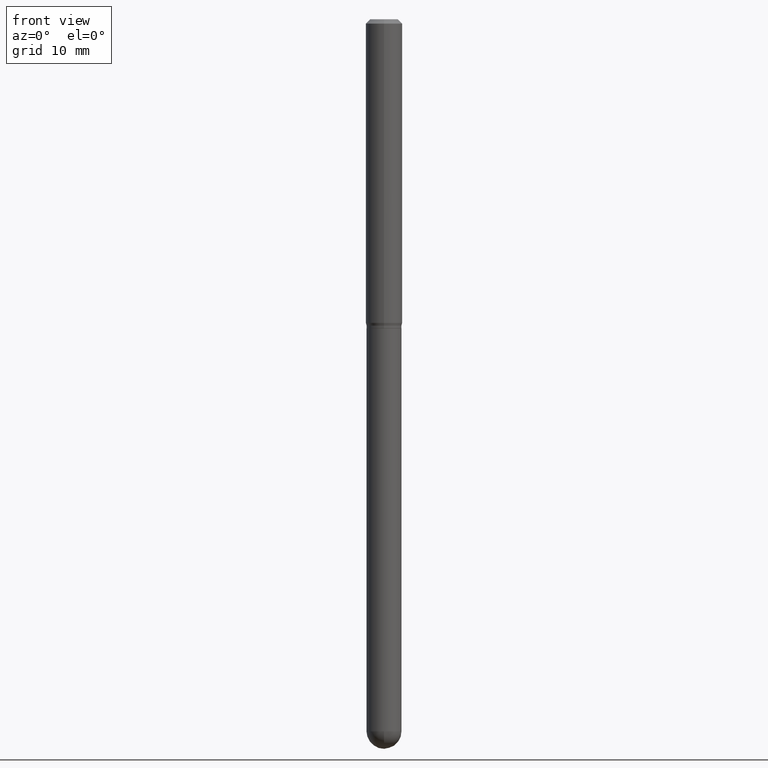
[diagram: clean part render]
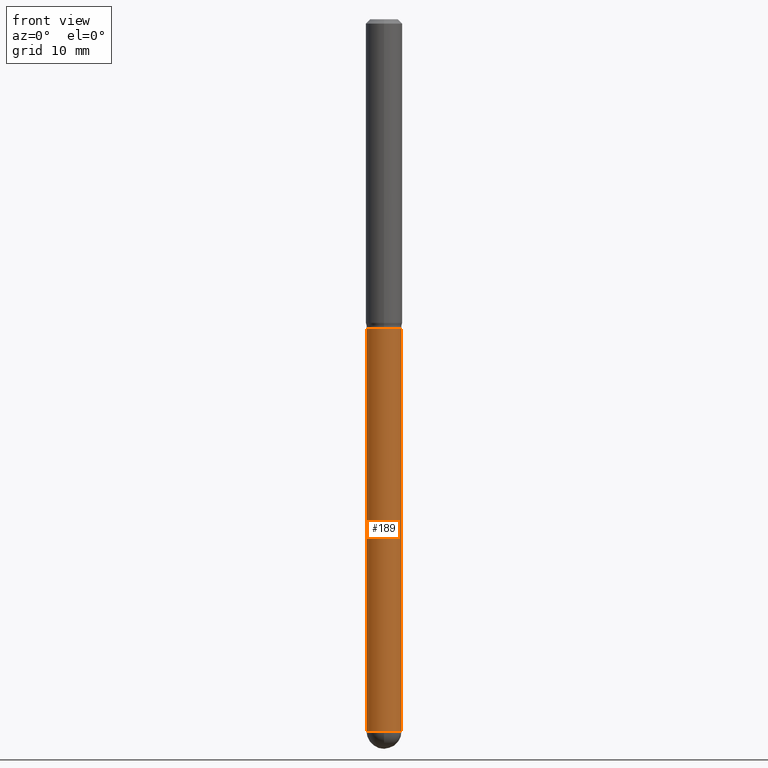
[diagram: same view with one face highlighted and labeled with its STEP entity id]
A machine part, front view. The second image highlights one B-rep face of the part: STEP entity #189.
In plain terms, the highlighted cylindrical surface (edge-blend (fillet) strip) has radius 1.524 mm, axis along (-0, 0, 1).
Its self-contained STEP definition (entity closure, byte-faithful):
#10 = DIRECTION ( 'NONE',  ( -2.445468806185136597E-29, 3.491481338843145583E-15, 1.000000000000000000 ) ) ;
#45 = DIRECTION ( 'NONE',  ( -2.445468806185136597E-29, 3.491481338843145583E-15, 1.000000000000000000 ) ) ;
#49 = VERTEX_POINT ( 'NONE', #469 ) ;
#52 = CIRCLE ( 'NONE', #179, 0.06000000000000001166 ) ;
#61 = DIRECTION ( 'NONE',  ( 1.000000000000000000, -6.982962677686266711E-15, 0.000000000000000000 ) ) ;
#66 = VERTEX_POINT ( 'NONE', #193 ) ;
#78 = DIRECTION ( 'NONE',  ( 1.000000000000000000, -6.982962677686268288E-15, 0.000000000000000000 ) ) ;
#84 = LINE ( 'NONE', #387, #352 ) ;
#87 = EDGE_CURVE ( 'NONE', #104, #49, #84, .T. ) ;
#104 = VERTEX_POINT ( 'NONE', #437 ) ;
#126 = FACE_OUTER_BOUND ( 'NONE', #414, .T. ) ;
#128 = DIRECTION ( 'NONE',  ( 1.000000000000000000, -6.982962677686266711E-15, 0.000000000000000000 ) ) ;
#130 = EDGE_CURVE ( 'NONE', #371, #66, #391, .T. ) ;
#142 = EDGE_CURVE ( 'NONE', #49, #66, #209, .T. ) ;
#171 = CARTESIAN_POINT ( 'NONE',  ( 0.06000000000000001166, -6.529070103636681305E-15, -2.440000000000000391 ) ) ;
#175 = CARTESIAN_POINT ( 'NONE',  ( 5.966943887091733341E-29, -8.519214466777275048E-15, -2.440000000000000391 ) ) ;
#179 = AXIS2_PLACEMENT_3D ( 'NONE', #490, #212, #128 ) ;
#182 = VERTEX_POINT ( 'NONE', #507 ) ;
#183 = DIRECTION ( 'NONE',  ( -2.445468806185136877E-29, 3.491481338843145188E-15, 1.000000000000000000 ) ) ;
#186 = VECTOR ( 'NONE', #183, 39.37007874015748143 ) ;
#189 = ADVANCED_FACE ( 'NONE', ( #126 ), #390, .T. ) ;
#193 = CARTESIAN_POINT ( 'NONE',  ( 0.05999999999999999778, -4.119947979834910928E-15, -1.060000000000000275 ) ) ;
#197 = CARTESIAN_POINT ( 'NONE',  ( 0.06000000000000001166, -4.189777606611760914E-16, 2.925706065477562106E-30 ) ) ;
#205 = DIRECTION ( 'NONE',  ( 1.000000000000000000, -6.982962677686266711E-15, 4.876176775795935793E-29 ) ) ;
#209 = CIRCLE ( 'NONE', #486, 0.05999999999999999778 ) ;
#212 = DIRECTION ( 'NONE',  ( -2.445468806185136597E-29, 3.491481338843145583E-15, 1.000000000000000000 ) ) ;
#214 = AXIS2_PLACEMENT_3D ( 'NONE', #398, #45, #205 ) ;
#225 = ORIENTED_EDGE ( 'NONE', *, *, #323, .T. ) ;
#227 = ORIENTED_EDGE ( 'NONE', *, *, #130, .T. ) ;
#273 = CIRCLE ( 'NONE', #319, 0.06000000000000001166 ) ;
#300 = ORIENTED_EDGE ( 'NONE', *, *, #465, .T. ) ;
#303 = ORIENTED_EDGE ( 'NONE', *, *, #142, .F. ) ;
#313 = DIRECTION ( 'NONE',  ( -2.445468806185136877E-29, 3.491481338843145188E-15, 1.000000000000000000 ) ) ;
#319 = AXIS2_PLACEMENT_3D ( 'NONE', #175, #10, #61 ) ;
#323 = EDGE_CURVE ( 'NONE', #104, #182, #52, .T. ) ;
#332 = ORIENTED_EDGE ( 'NONE', *, *, #87, .F. ) ;
#352 = VECTOR ( 'NONE', #313, 39.37007874015748143 ) ;
#371 = VERTEX_POINT ( 'NONE', #171 ) ;
#387 = CARTESIAN_POINT ( 'NONE',  ( -0.06000000000000001166, 4.263256414560601944E-16, -2.951361054152943763E-30 ) ) ;
#390 = CYLINDRICAL_SURFACE ( 'NONE', #214, 0.06000000000000001166 ) ;
#391 = LINE ( 'NONE', #197, #186 ) ;
#398 = CARTESIAN_POINT ( 'NONE',  ( 0.000000000000000000, 0.000000000000000000, 0.000000000000000000 ) ) ;
#413 = CARTESIAN_POINT ( 'NONE',  ( 2.592196934556245308E-29, -3.700970219173735083E-15, -1.060000000000000275 ) ) ;
#414 = EDGE_LOOP ( 'NONE', ( #332, #225, #300, #227, #303 ) ) ;
#437 = CARTESIAN_POINT ( 'NONE',  ( -0.06000000000000001166, -5.683766701519444970E-15, -2.440000000000000391 ) ) ;
#465 = EDGE_CURVE ( 'NONE', #182, #371, #273, .T. ) ;
#469 = CARTESIAN_POINT ( 'NONE',  ( -0.05999999999999999778, -5.683766701519444970E-15, -1.060000000000000275 ) ) ;
#470 = DIRECTION ( 'NONE',  ( -2.445468806185136597E-29, 3.491481338843145583E-15, 1.000000000000000000 ) ) ;
#486 = AXIS2_PLACEMENT_3D ( 'NONE', #413, #470, #78 ) ;
#490 = CARTESIAN_POINT ( 'NONE',  ( 5.966943887091733341E-29, -8.519214466777275048E-15, -2.440000000000000391 ) ) ;
#507 = CARTESIAN_POINT ( 'NONE',  ( -4.263256414559992548E-16, -0.06000000000000837302, -2.439999999999999947 ) ) ;